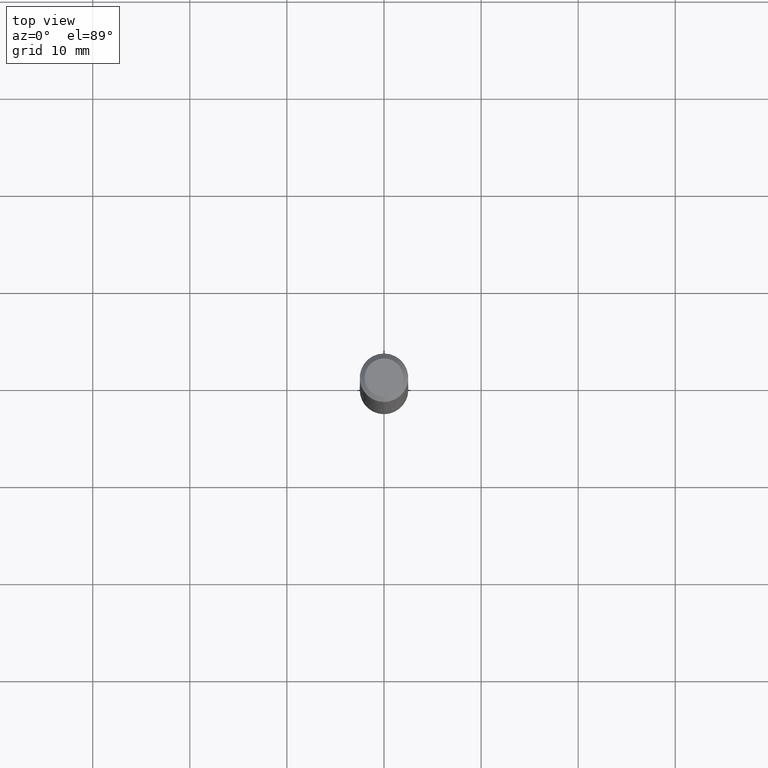
[diagram: clean part render]
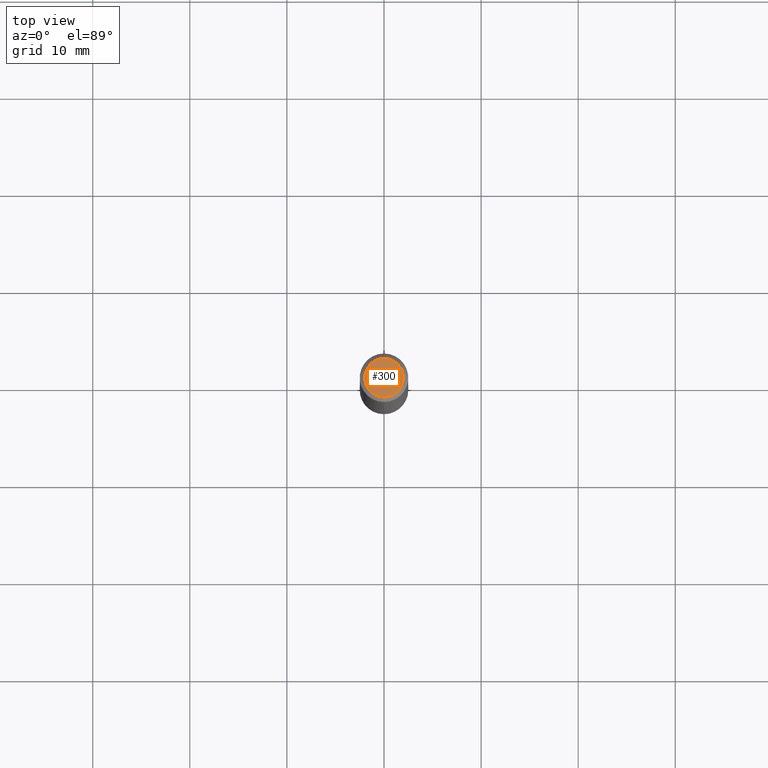
[diagram: same view with one face highlighted and labeled with its STEP entity id]
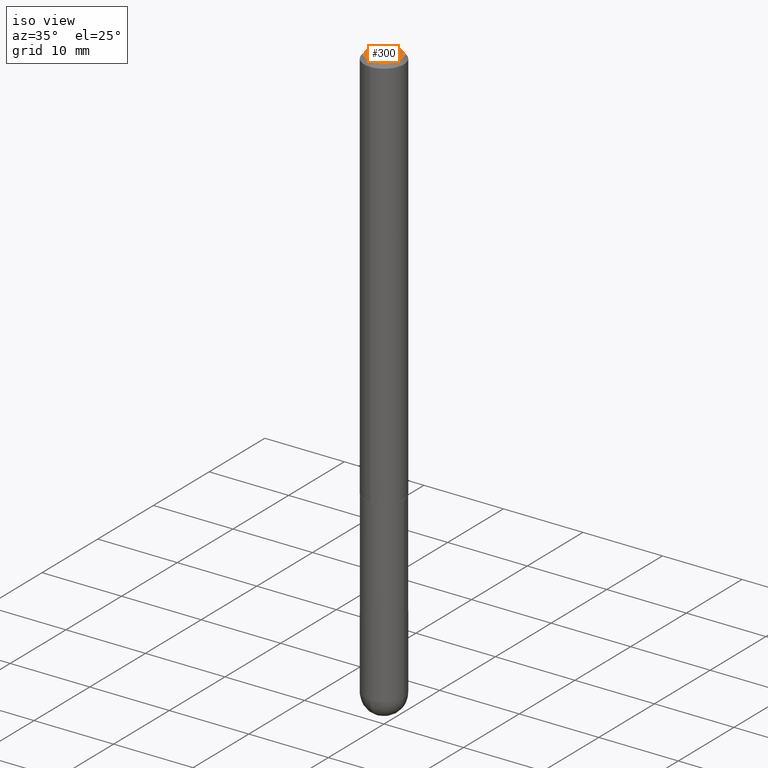
[diagram: same view with one face highlighted and labeled with its STEP entity id]
A machine part, top view. The second image highlights one B-rep face of the part: STEP entity #300.
A second angle (iso view) of the same face is appended — the face is thin or edge-on in the first view.
In plain terms, the highlighted planar face has unit normal (0, -0, -1).
Its self-contained STEP definition (entity closure, byte-faithful):
#23 = VERTEX_POINT ( 'NONE', #264 ) ;
#24 = AXIS2_PLACEMENT_3D ( 'NONE', #277, #126, #246 ) ;
#67 = DIRECTION ( 'NONE',  ( -2.455983392421677748E-29, 3.476423852899335483E-15, 1.000000000000000000 ) ) ;
#95 = FACE_OUTER_BOUND ( 'NONE', #293, .T. ) ;
#126 = DIRECTION ( 'NONE',  ( -2.455983392421677748E-29, 3.476423852899335483E-15, 1.000000000000000000 ) ) ;
#130 = DIRECTION ( 'NONE',  ( -6.982962677686265133E-15, -1.000000000000000000, 3.476423852899335877E-15 ) ) ;
#136 = AXIS2_PLACEMENT_3D ( 'NONE', #353, #67, #130 ) ;
#166 = VERTEX_POINT ( 'NONE', #175 ) ;
#175 = CARTESIAN_POINT ( 'NONE',  ( 6.176430488413512340E-16, 0.07845000000000024176, -5.214804354580695046E-16 ) ) ;
#189 = AXIS2_PLACEMENT_3D ( 'NONE', #411, #280, #233 ) ;
#233 = DIRECTION ( 'NONE',  ( 6.982962677686265922E-15, 1.000000000000000000, -3.476423852899335089E-15 ) ) ;
#246 = DIRECTION ( 'NONE',  ( -6.982962677686265133E-15, -1.000000000000000000, 3.476423852899335877E-15 ) ) ;
#250 = EDGE_CURVE ( 'NONE', #166, #23, #382, .T. ) ;
#264 = CARTESIAN_POINT ( 'NONE',  ( -6.068110479028924671E-16, -0.07845000000000024176, 2.397046706183794315E-17 ) ) ;
#272 = ORIENTED_EDGE ( 'NONE', *, *, #250, .T. ) ;
#277 = CARTESIAN_POINT ( 'NONE',  ( 6.109381099726892586E-45, -8.647777605939269895E-31, -2.487549841981157792E-16 ) ) ;
#280 = DIRECTION ( 'NONE',  ( 2.455983392421677748E-29, -3.476423852899335089E-15, -1.000000000000000000 ) ) ;
#292 = EDGE_CURVE ( 'NONE', #23, #166, #311, .T. ) ;
#293 = EDGE_LOOP ( 'NONE', ( #272, #380 ) ) ;
#300 = ADVANCED_FACE ( 'NONE', ( #95 ), #349, .F. ) ;
#311 = CIRCLE ( 'NONE', #136, 0.07845000000000024176 ) ;
#349 = PLANE ( 'NONE',  #189 ) ;
#353 = CARTESIAN_POINT ( 'NONE',  ( 6.109381099726892586E-45, -8.647777605939269895E-31, -2.487549841981157792E-16 ) ) ;
#380 = ORIENTED_EDGE ( 'NONE', *, *, #292, .T. ) ;
#382 = CIRCLE ( 'NONE', #24, 0.07845000000000024176 ) ;
#411 = CARTESIAN_POINT ( 'NONE',  ( 5.478134220644892177E-16, 0.07845000000000024176, -3.971029433590115903E-16 ) ) ;